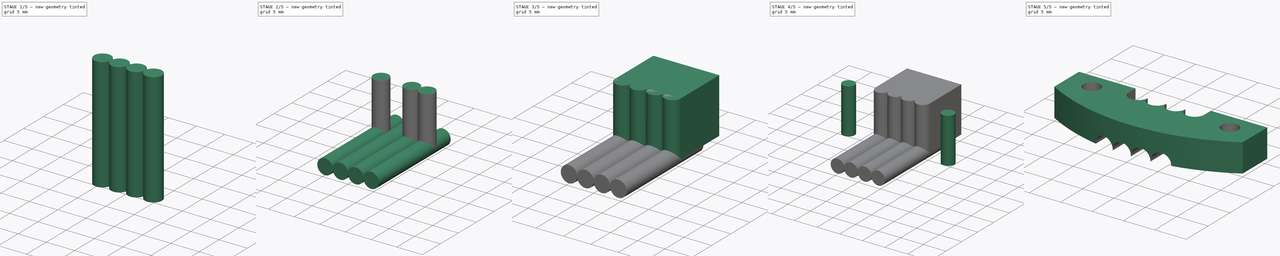
[diagram: build sequence overview — one tinted view per stage of 5, left to right]
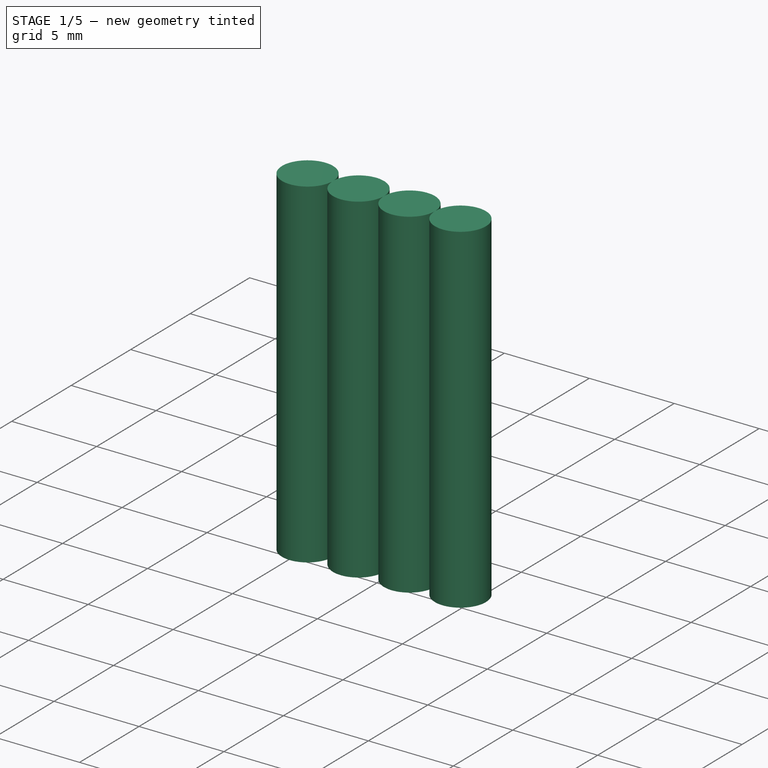
[diagram: stage 1 of 5 — iso view after this stage's code; geometry added in this stage tinted green]
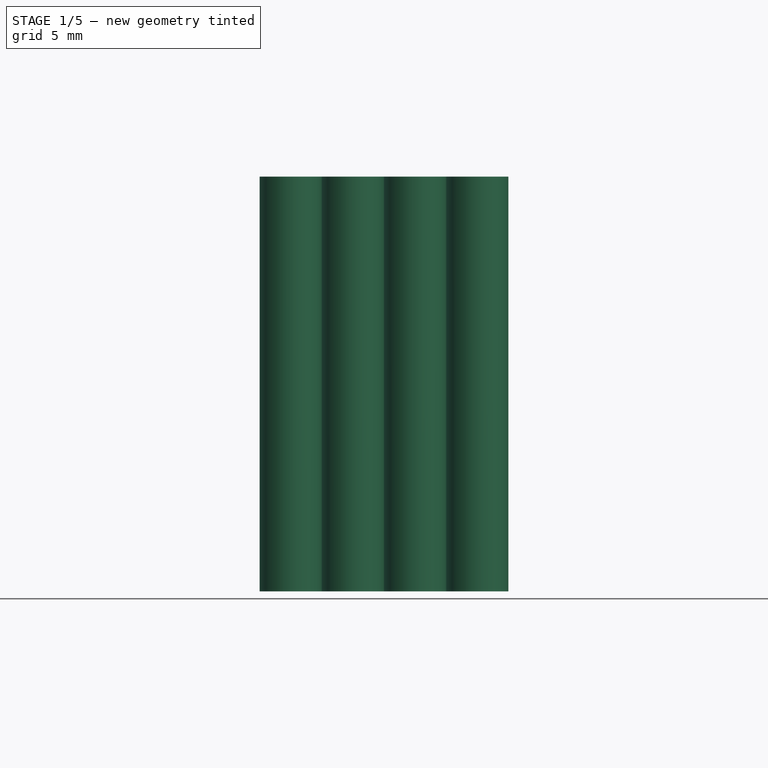
[diagram: stage 1 of 5 — front view after this stage's code; geometry added in this stage tinted green]
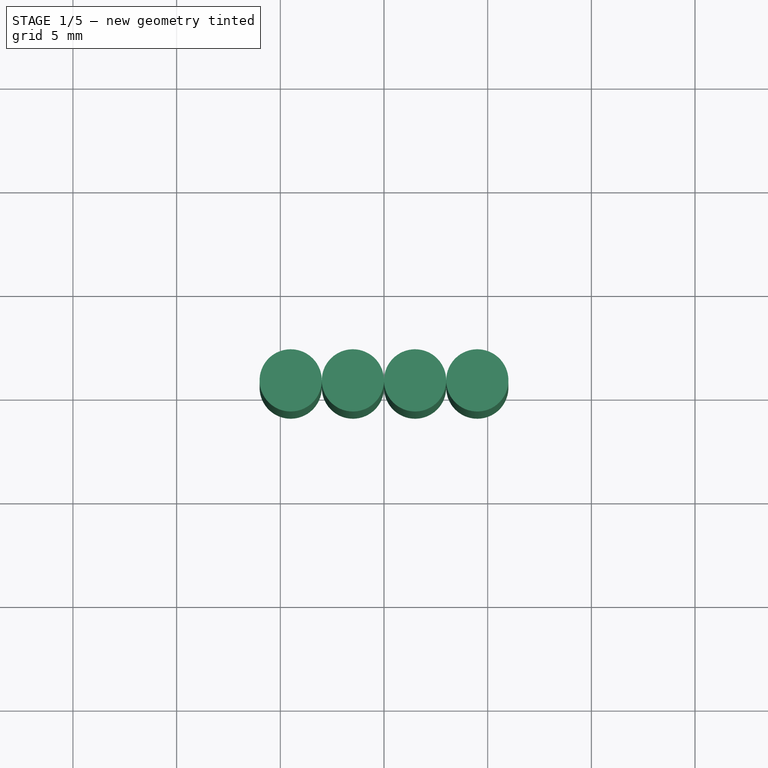
[diagram: stage 1 of 5 — top view after this stage's code; geometry added in this stage tinted green]
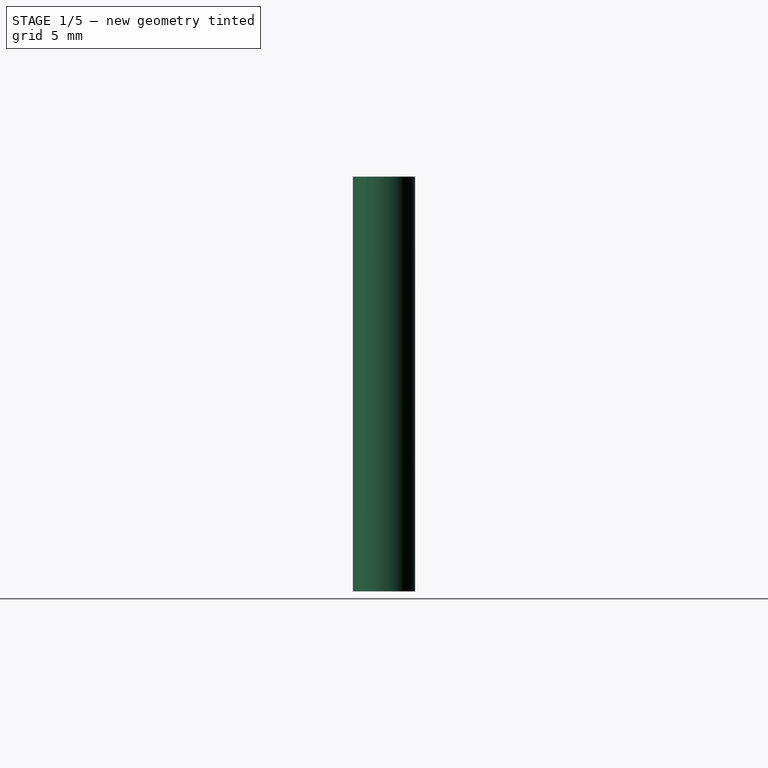
[diagram: stage 1 of 5 — right view after this stage's code; geometry added in this stage tinted green]
FCSTD DOCUMENT  (FreeCAD 0.15R4671 (Git))
Label: tendon_strap_xm_106
License: All rights reserved
LicenseURL: http://en.wikipedia.org/wiki/All_rights_reserved
objects: Part::Cylinder×10, Part::MultiFuse×5, Part::Box×2, Sketcher::SketchObject×1, Part::Extrusion×1, Part::Cut×1
note: 20 computed .brp shape members not serialized (recipe doc carries the construction recipe); baked Part::Feature solids carry a one-line shape summary decoded from their .brp

FEATURE [Part::Cylinder] Cylinder006
  Angle = 360
  Height = 20
  Placement = pos=(13.5,5.6,0) rot=(0,0,1;0rad)
  Radius = 1.5
FEATURE [Part::Cylinder] Cylinder007
  Angle = 360
  Height = 20
  Placement = pos=(10.5,5.6,0) rot=(0,0,1;0rad)
  Radius = 1.5
FEATURE [Part::Cylinder] Cylinder008
  Angle = 360
  Height = 20
  Placement = pos=(16.5,5.6,0) rot=(0,0,1;0rad)
  Radius = 1.5
FEATURE [Part::Cylinder] Cylinder009
  Angle = 360
  Height = 20
  Placement = pos=(19.5,5.6,0) rot=(0,0,1;0rad)
  Radius = 1.5
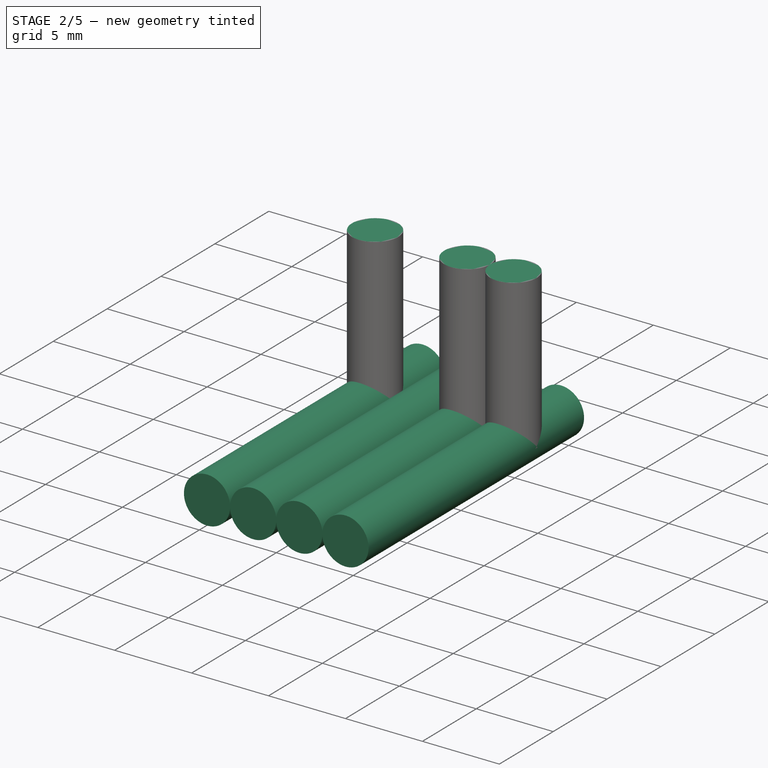
[diagram: stage 2 of 5 — iso view after this stage's code; geometry added in this stage tinted green]
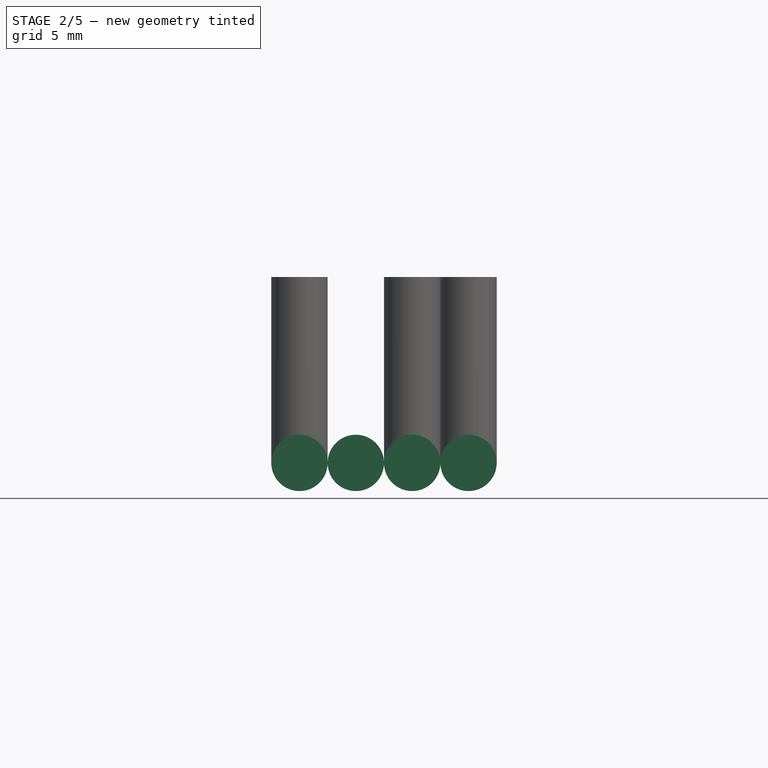
[diagram: stage 2 of 5 — front view after this stage's code; geometry added in this stage tinted green]
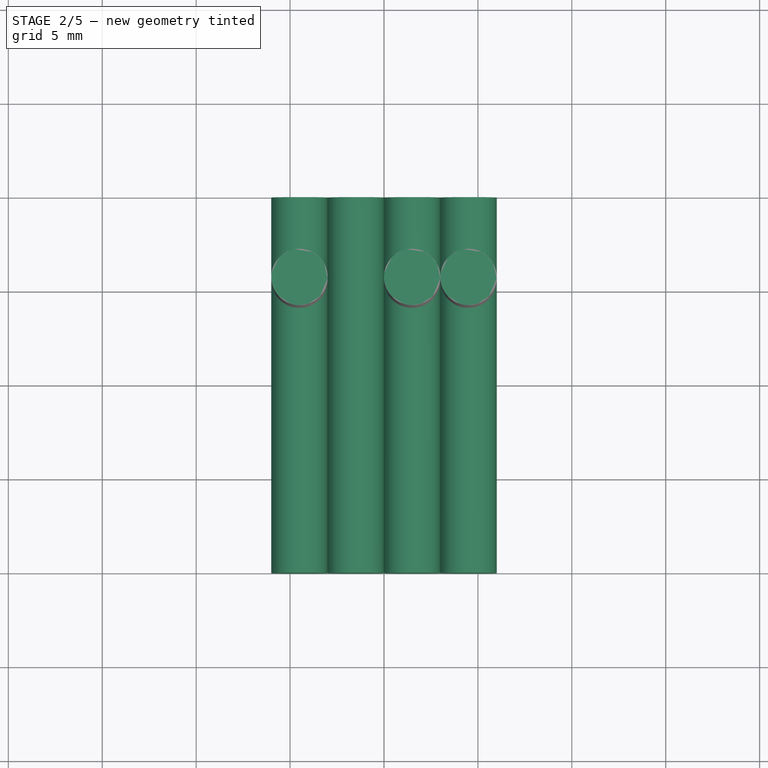
[diagram: stage 2 of 5 — top view after this stage's code; geometry added in this stage tinted green]
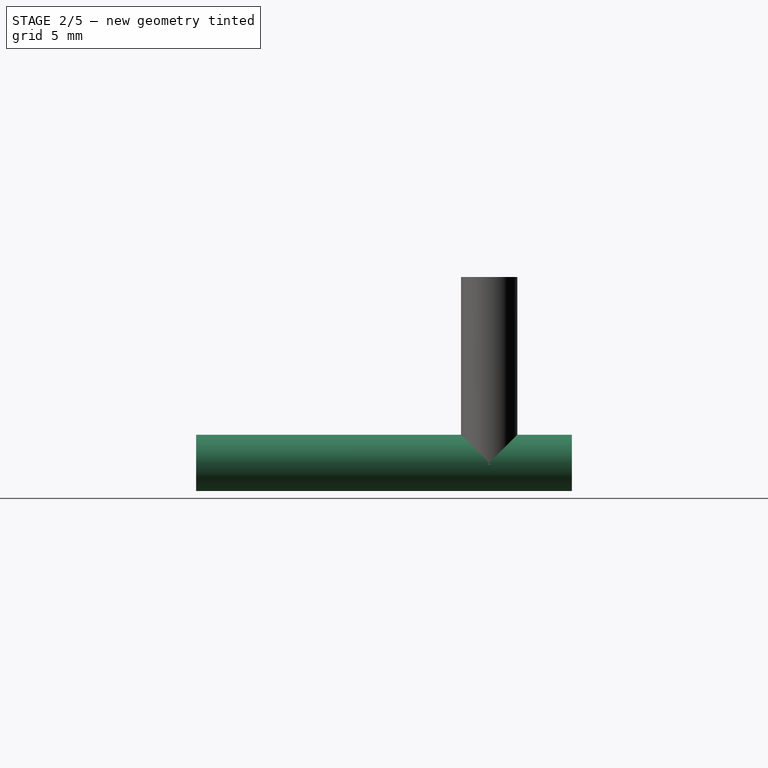
[diagram: stage 2 of 5 — right view after this stage's code; geometry added in this stage tinted green]
FEATURE [Part::Cylinder] Cylinder003
  Angle = 360
  Height = 10
  Placement = pos=(10.5,5.6,0) rot=(0,0,1;0rad)
  Radius = 1.5
FEATURE [Part::Cylinder] Cylinder004
  Angle = 360
  Height = 10
  Placement = pos=(16.5,5.6,0) rot=(0,0,1;0rad)
  Radius = 1.5
FEATURE [Part::Cylinder] Cylinder005
  Angle = 360
  Height = 10
  Placement = pos=(19.5,5.6,0) rot=(0,0,1;0rad)
  Radius = 1.5
FEATURE [Part::MultiFuse] Fusion004
  Placement = pos=(0,10,-5.5) rot=(1,0,0;1.5708rad)
  Shapes = -> [Cylinder006,Cylinder009,Cylinder007,Cylinder008]
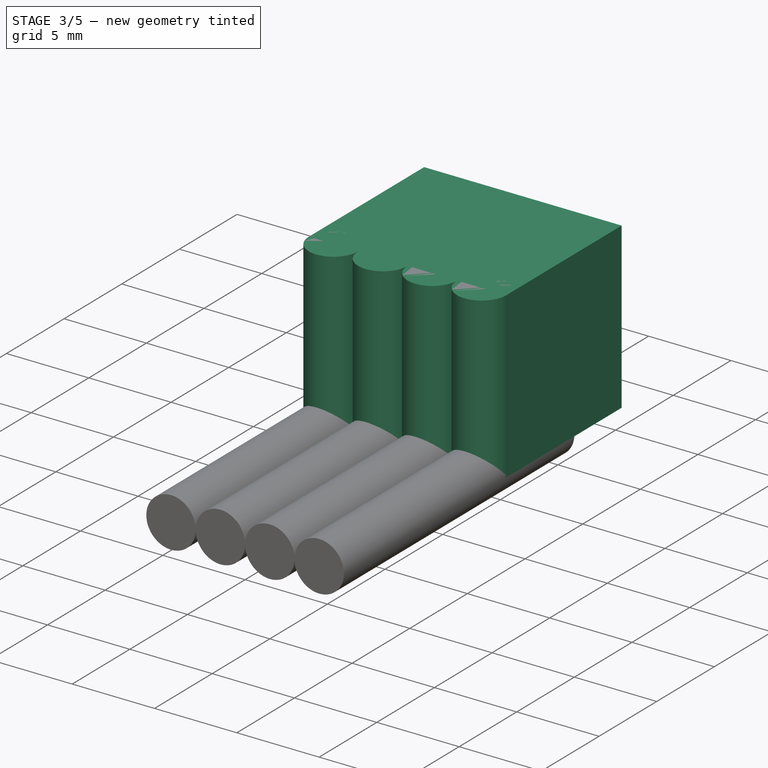
[diagram: stage 3 of 5 — iso view after this stage's code; geometry added in this stage tinted green]
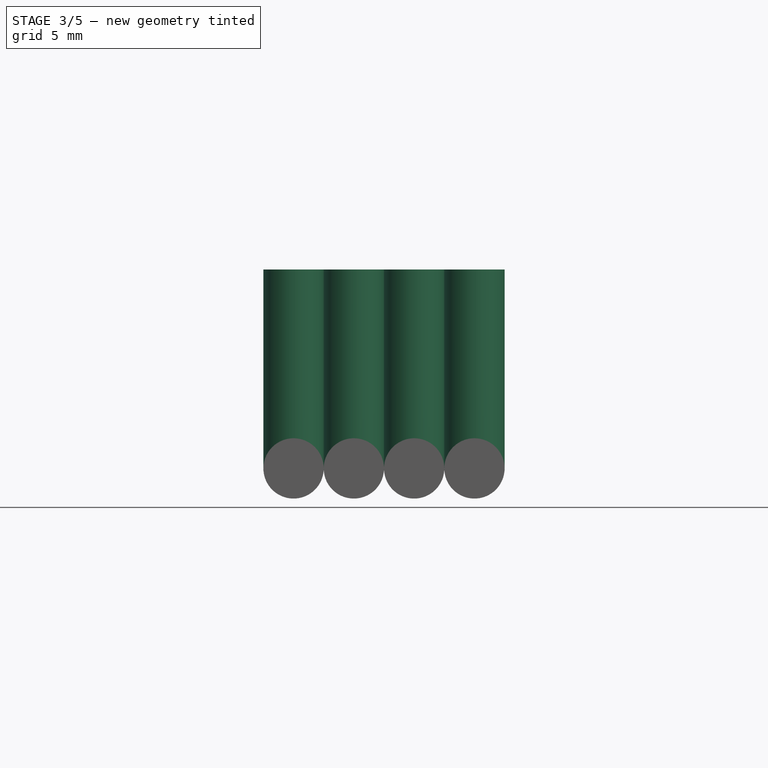
[diagram: stage 3 of 5 — front view after this stage's code; geometry added in this stage tinted green]
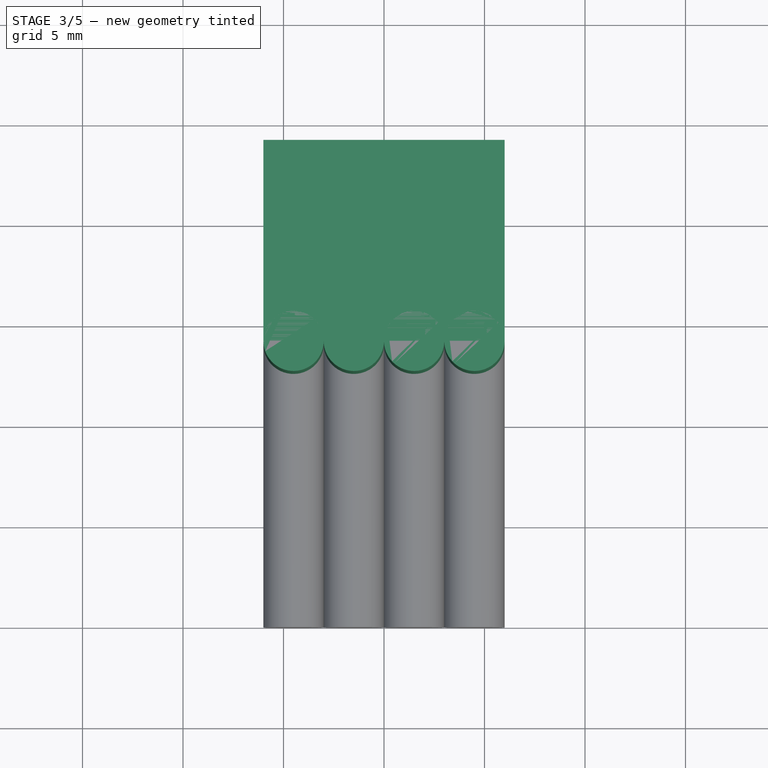
[diagram: stage 3 of 5 — top view after this stage's code; geometry added in this stage tinted green]
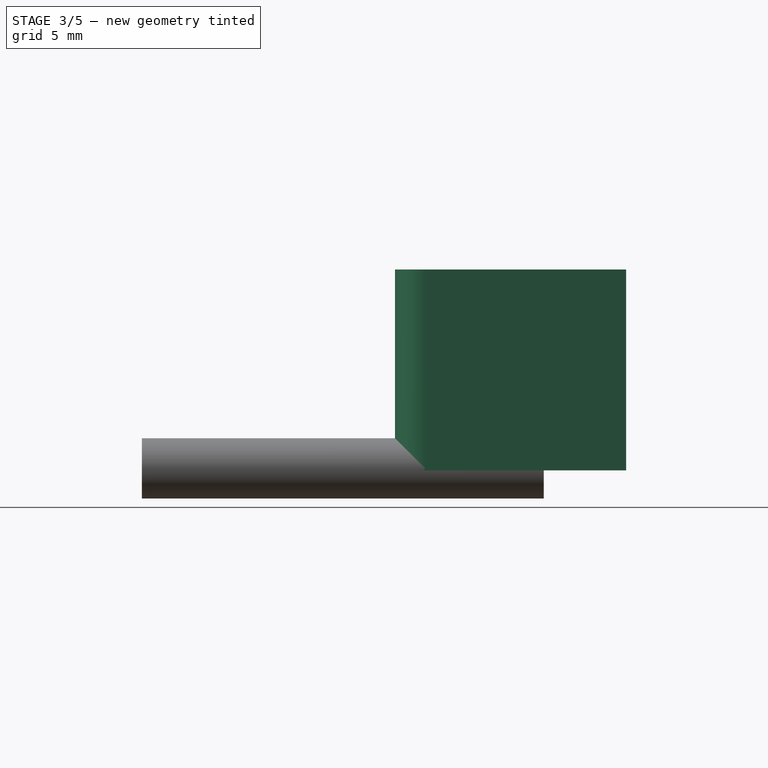
[diagram: stage 3 of 5 — right view after this stage's code; geometry added in this stage tinted green]
FEATURE [Part::Cylinder] Cylinder002
  Angle = 360
  Height = 10
  Placement = pos=(13.5,5.6,0) rot=(0,0,1;0rad)
  Radius = 1.5
FEATURE [Part::Box] Box001  label="Cube001"
  Height = 10
  Length = 12
  Placement = pos=(9,4.1,0) rot=(0,0,1;0rad)
  Width = 10
FEATURE [Part::MultiFuse] Fusion
  Placement = pos=(0,-1.5,0) rot=(0,0,1;0rad)
  Shapes = -> [Cylinder005,Cylinder004,Cylinder003,Cylinder002]
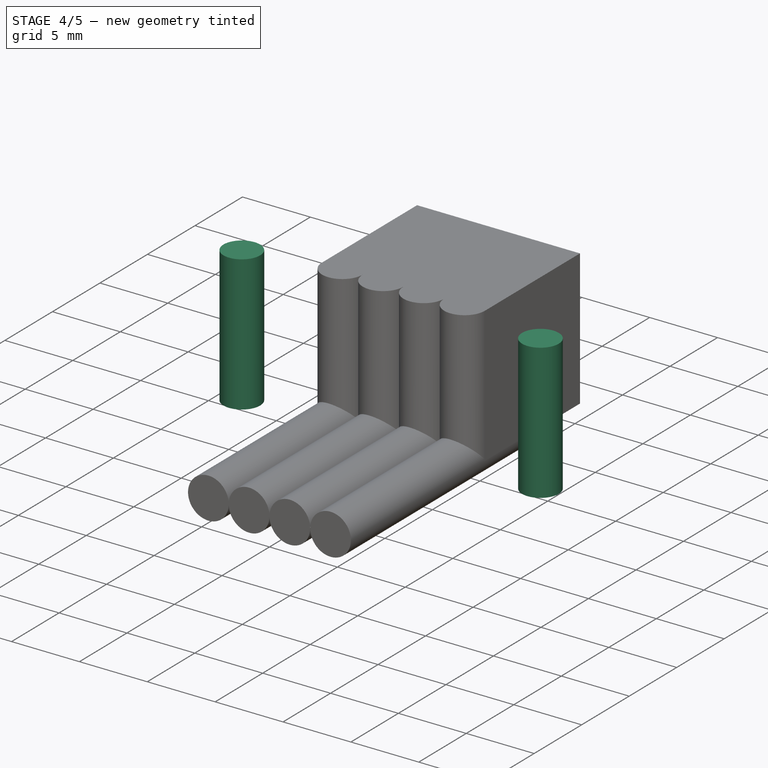
[diagram: stage 4 of 5 — iso view after this stage's code; geometry added in this stage tinted green]
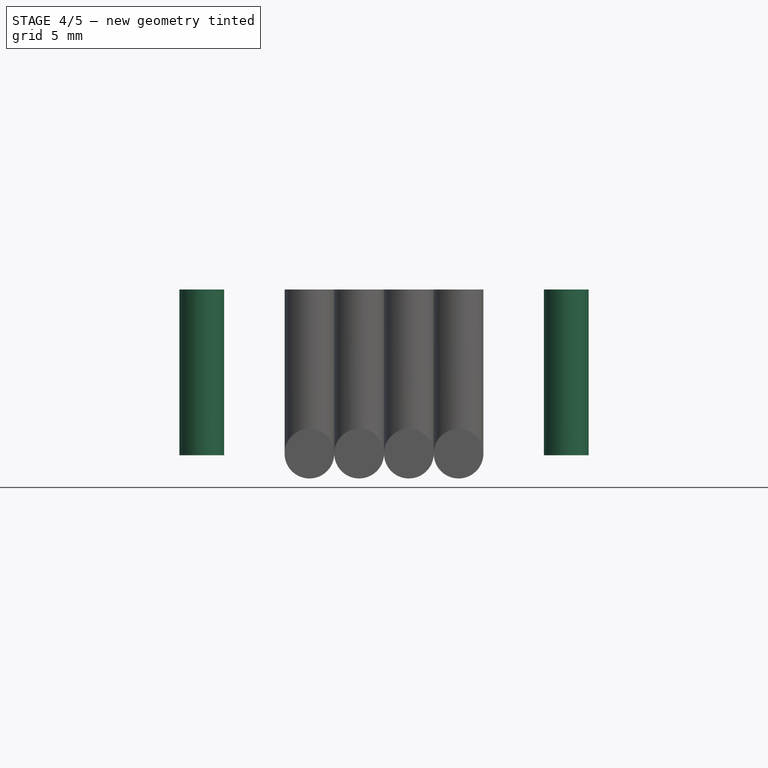
[diagram: stage 4 of 5 — front view after this stage's code; geometry added in this stage tinted green]
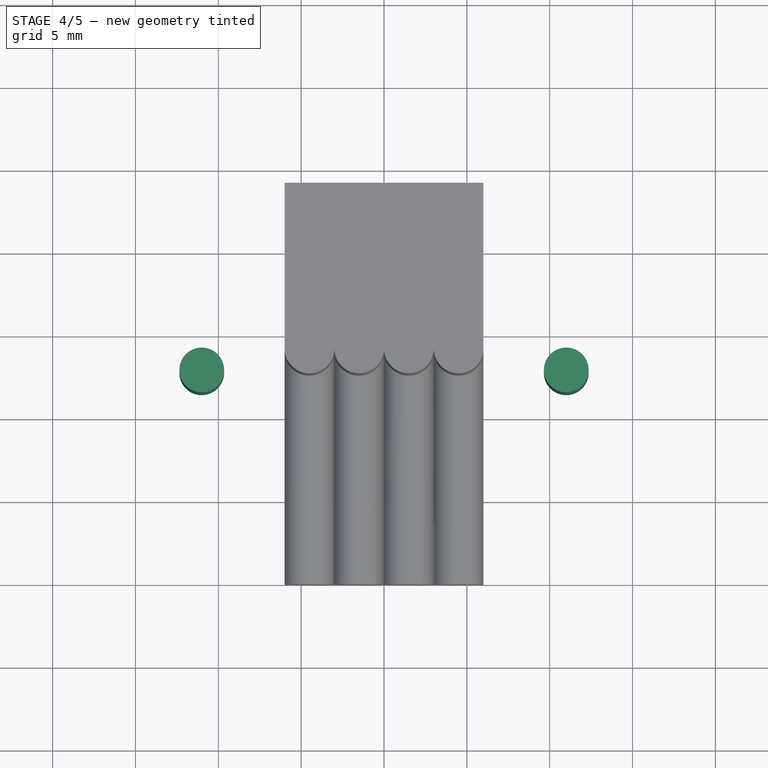
[diagram: stage 4 of 5 — top view after this stage's code; geometry added in this stage tinted green]
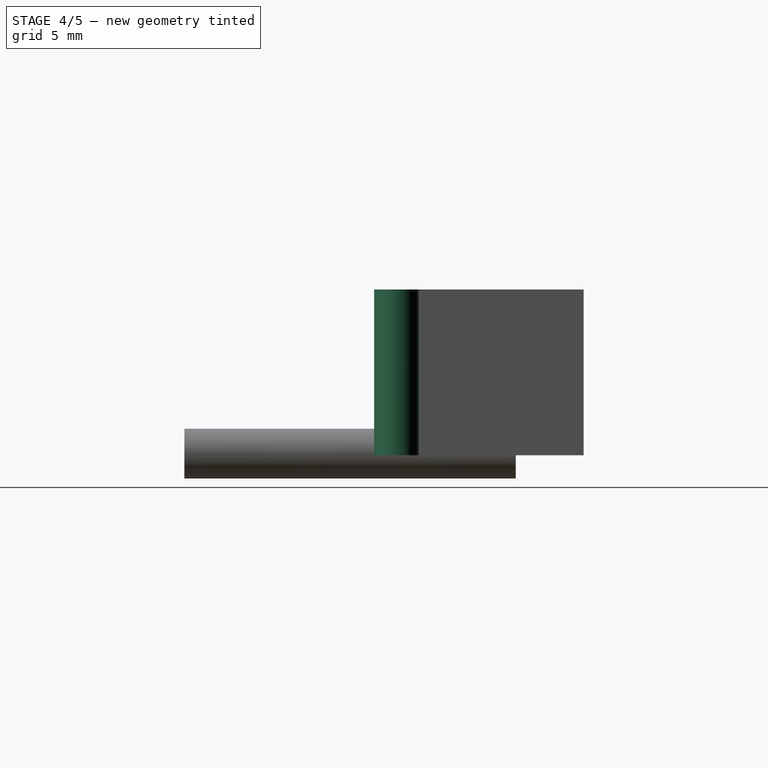
[diagram: stage 4 of 5 — right view after this stage's code; geometry added in this stage tinted green]
FEATURE [Part::Cylinder] Cylinder
  Angle = 360
  Height = 10
  Placement = pos=(4,2.8,0) rot=(0,0,1;0rad)
  Radius = 1.35
FEATURE [Part::Cylinder] Cylinder001
  Angle = 360
  Height = 10
  Placement = pos=(26,2.8,0) rot=(0,0,1;0rad)
  Radius = 1.35
FEATURE [Part::MultiFuse] Fusion001
  Shapes = -> [Cylinder,Box001,Cylinder001,Fusion]
FEATURE [Part::MultiFuse] Fusion005
  Shapes = -> [Fusion004,Fusion001]
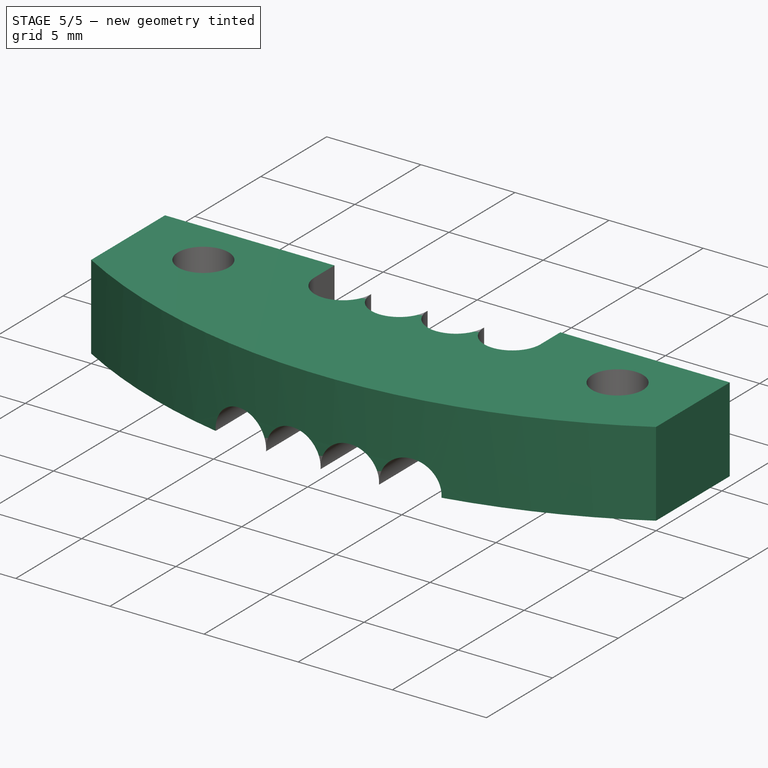
[diagram: stage 5 of 5 — iso view after this stage's code; geometry added in this stage tinted green]
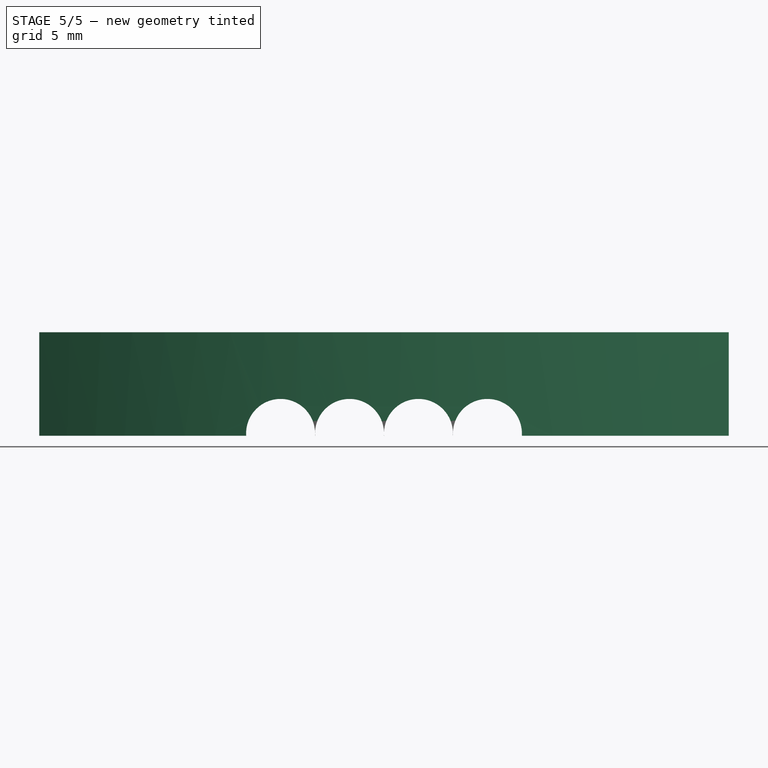
[diagram: stage 5 of 5 — front view after this stage's code; geometry added in this stage tinted green]
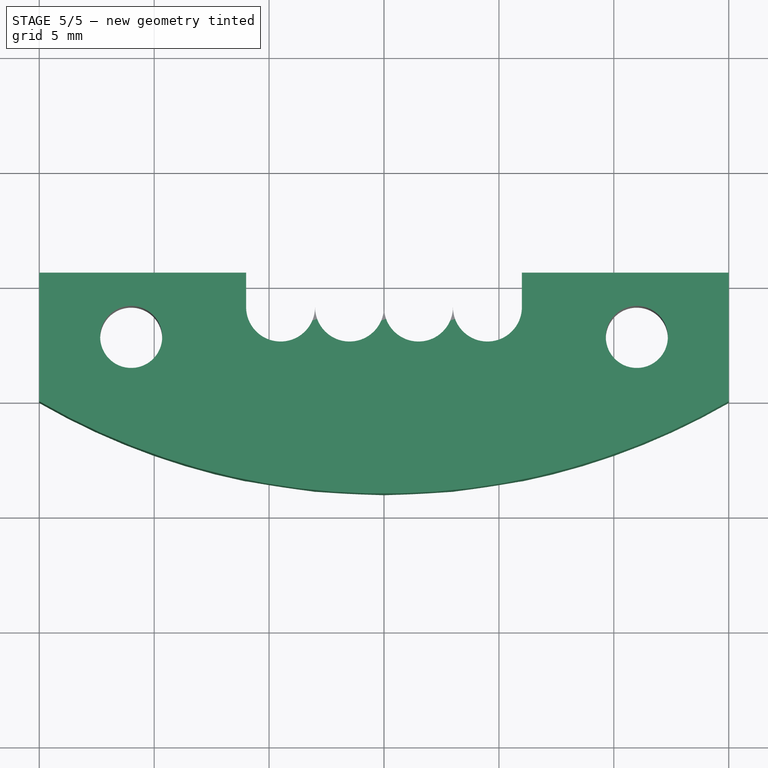
[diagram: stage 5 of 5 — top view after this stage's code; geometry added in this stage tinted green]
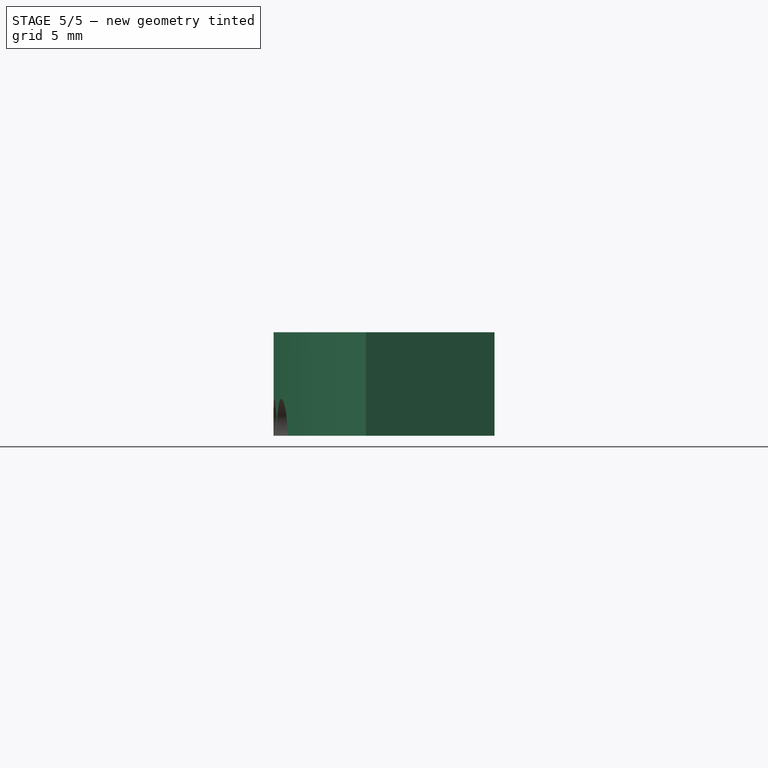
[diagram: stage 5 of 5 — right view after this stage's code; geometry added in this stage tinted green]
FEATURE [Part::Box] Box  label="Cube"
  Height = 4.5
  Length = 30
  Width = 5.6
FEATURE [Sketcher::SketchObject] Sketch
  Placement = pos=(0,0,4.5) rot=(0,0,1;0rad)
  Support = -> Box [Face6]
  sketch-geometry (2):
    g0: ArcOfCircle CenterX=15 CenterY=25.9808 CenterZ=0 NormalX=0 NormalY=0 NormalZ=1 Radius=30 StartAngle=4.18879 EndAngle=5.23599
    g1: LineSegment StartX=0 StartY=0 StartZ=0 EndX=30 EndY=0 EndZ=0
  constraints (7):
    c: Radius(g0) = 30
    c: DistanceX(g0) = 15
    c: PointOnObject(g-1,g0)
    c: DistanceX(g0) = 30
    c: Coincident(g1,g-1)
    c: PointOnObject(g1,g0)
    c: Horizontal(g1)
FEATURE [Part::Extrusion] Extrude
  Base = -> Sketch
  Dir = (0,0,-4.5)
  Solid = true
FEATURE [Part::MultiFuse] Fusion003
  Shapes = -> [Extrude,Box]
FEATURE [Part::Cut] Cut
  Base = -> Fusion003
  Tool = -> Fusion005
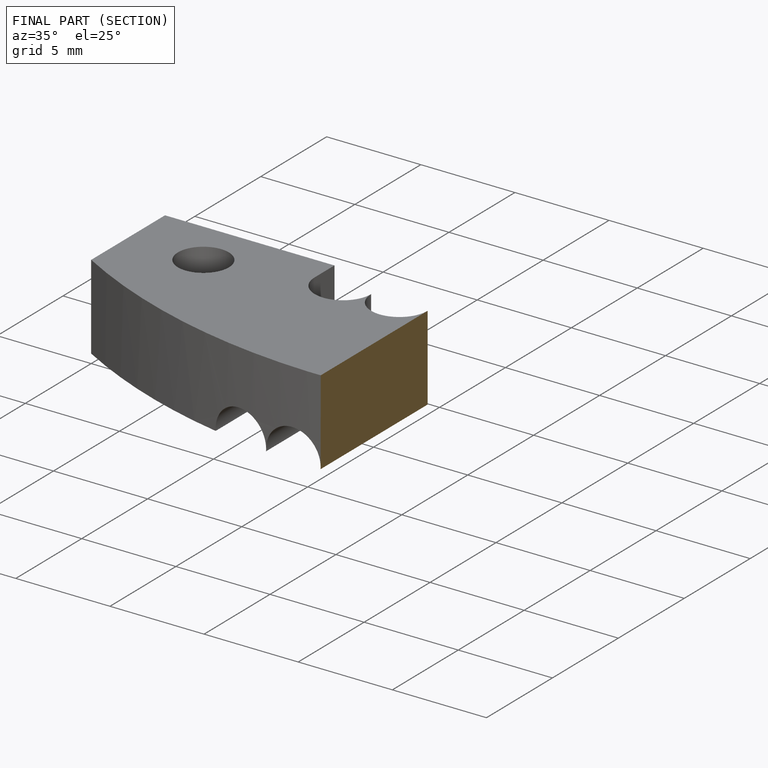
[diagram: finished part — half-section view (interior)]
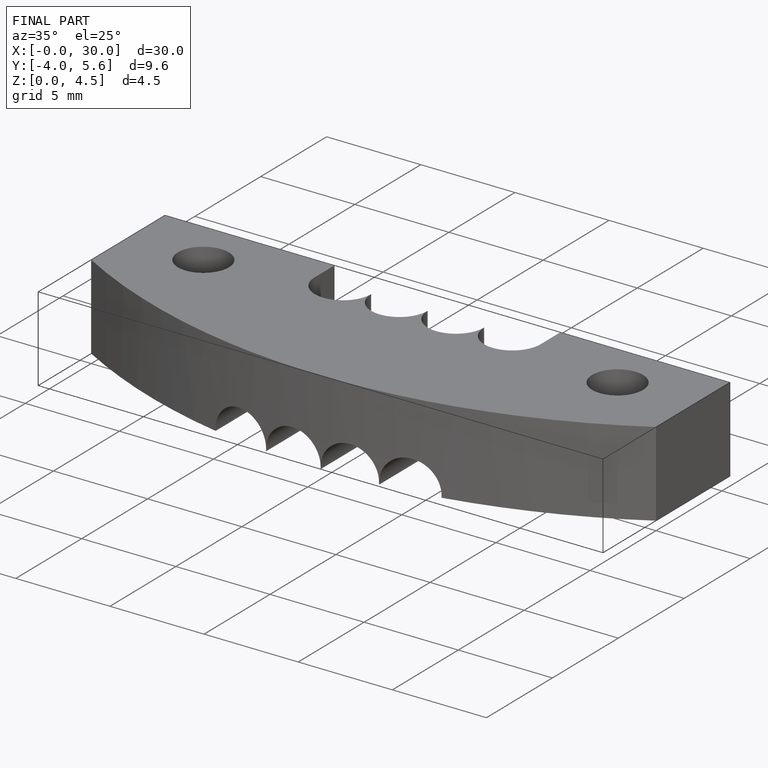
[diagram: finished part — iso view with bounding-box wireframe]
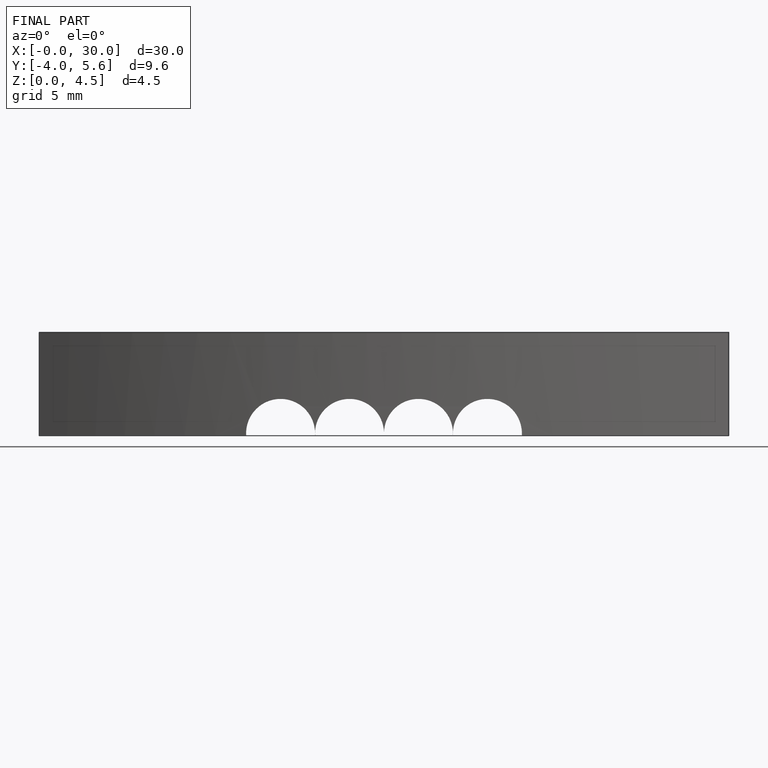
[diagram: finished part — front view with bounding-box wireframe]
